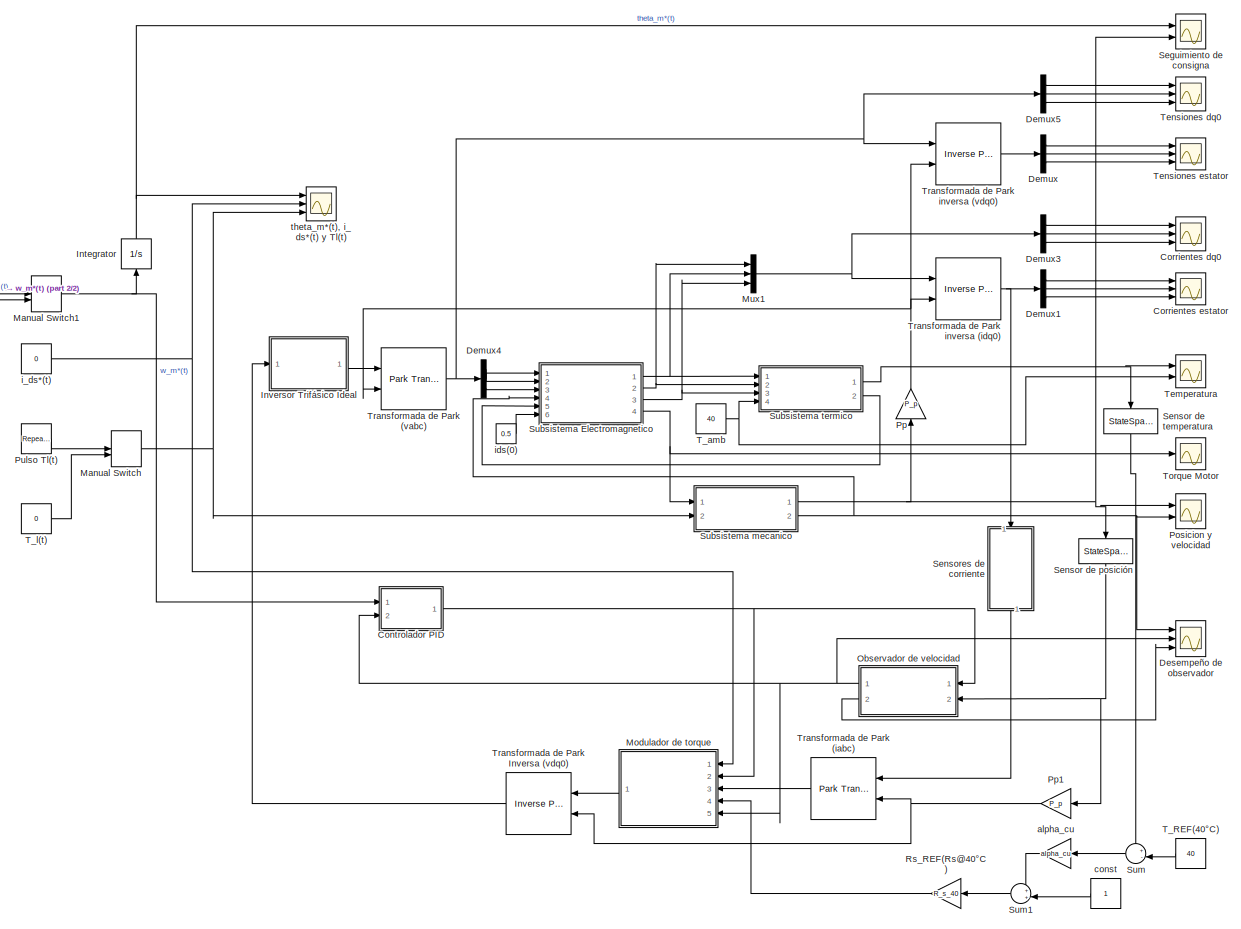
[diagram: root canvas - part 1/2, most of the canvas]
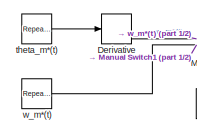
[diagram: root canvas - part 2/2, middle left region]
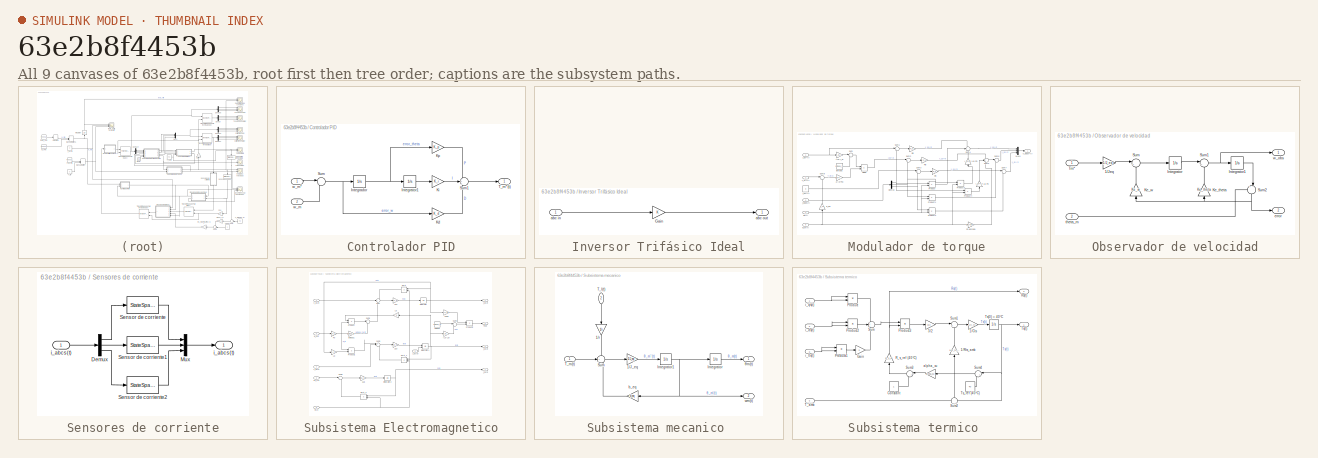
[diagram: thumbnail index - all 9 canvases of the model, root first then tree order]
MODEL slx_63e2b8f4453b
KIND model
CONFIG AbsTol = auto
CONFIG EnableMultiTasking = off
CONFIG FixedStep = auto
CONFIG MaxStep = 1e-5
CONFIG MinStep = auto
CONFIG RelTol = 1e-5
CONFIG SampleTimeConstraint = Unconstrained
CONFIG Solver = VariableStepAuto
CONFIG SolverName = VariableStepAuto
CONFIG StartTime = 0.0
CONFIG StopTime = 25
BLOCK [Scope]  theta_m*(t), i_ds*(t) y Tl(t)
  Floating = off
  NumInputPorts = 3
  Ports = [3]
  ScopeSpecificationString = Simulink.scopes.TimeScopeBlockCfg('CurrentConfiguration', extmgr.ConfigurationSet(extmgr.Configuration('Core','General UI',true,'FigureColor',[1 1 1]),extmgr.Configuration('Core','Source UI',true),extmgr.Configuration('Sources','WiredSimulink',true,'DataLoggingVariableName','ScopeData1'),extmgr.Configuration('Visuals','Time Domain',true,'SerializedDisplays',{struct('MinYLimReal','-253.91627','MaxY...<+1700ch>
BLOCK [SubSystem] Controlador PID
  Ports = [2, 1]
  RequestExecContextInheritance = off
BLOCK [Integrator] Controlador PID/Integrador
  Ports = [1, 1]
BLOCK [Integrator] Controlador PID/Integrator1
  Ports = [1, 1]
BLOCK [Gain] Controlador PID/Kd
  Gain = K_d
  OutDataTypeStr = Inherit: Inherit via internal rule
  ParamDataTypeStr = Inherit: Inherit via internal rule
  SaturateOnIntegerOverflow = off
BLOCK [Gain] Controlador PID/Ki
  Gain = K_i
  OutDataTypeStr = Inherit: Inherit via internal rule
  ParamDataTypeStr = Inherit: Inherit via internal rule
  SaturateOnIntegerOverflow = off
BLOCK [Gain] Controlador PID/Kp
  Gain = K_p
  OutDataTypeStr = Inherit: Inherit via internal rule
  ParamDataTypeStr = Inherit: Inherit via internal rule
  SaturateOnIntegerOverflow = off
BLOCK [Sum] Controlador PID/Sum
  IconShape = round
  InputSameDT = off
  Inputs = |+-
  OutDataTypeStr = Inherit: Inherit via internal rule
  Ports = [2, 1]
  SaturateOnIntegerOverflow = off
BLOCK [Sum] Controlador PID/Sum1
  IconShape = round
  InputSameDT = off
  Inputs = +++
  OutDataTypeStr = Inherit: Inherit via internal rule
  Ports = [3, 1]
  SaturateOnIntegerOverflow = off
BLOCK [Outport] Controlador PID/T_m*'(t)
  IconDisplay = Port number
BLOCK [Inport] Controlador PID/w_m
  IconDisplay = Port number
  Port = 2
BLOCK [Inport] Controlador PID/w_m*
  IconDisplay = Port number
BLOCK [Scope] Corrientes dq0
  Floating = off
  NumInputPorts = 3
  Ports = [3]
  ScopeSpecificationString = Simulink.scopes.TimeScopeBlockCfg('CurrentConfiguration', extmgr.ConfigurationSet(extmgr.Configuration('Core','General UI',true,'FigureColor',[1 1 1]),extmgr.Configuration('Core','Source UI',true),extmgr.Configuration('Sources','WiredSimulink',true,'DataLoggingVariableName','ScopeData3'),extmgr.Configuration('Visuals','Time Domain',true,'SerializedDisplays',{struct('MinYLimReal','-0.74221','MaxYLi...<+1623ch>
BLOCK [Scope] Corrientes estator
  Floating = off
  NumInputPorts = 3
  Ports = [3]
  ScopeSpecificationString = Simulink.scopes.TimeScopeBlockCfg('CurrentConfiguration', extmgr.ConfigurationSet(extmgr.Configuration('Core','General UI',true,'FigureColor',[1 1 1]),extmgr.Configuration('Core','Source UI',true),extmgr.Configuration('Sources','WiredSimulink',true,'DataLoggingVariableName','ScopeData2'),extmgr.Configuration('Visuals','Time Domain',true,'SerializedDisplays',{struct('MinYLimReal','-0.88436','MaxYLi...<+1624ch>
BLOCK [Demux] Demux
  DisplayOption = bar
  Outputs = 3
  Ports = [1, 3]
BLOCK [Demux] Demux1
  DisplayOption = bar
  Outputs = 3
  Ports = [1, 3]
BLOCK [Demux] Demux3
  DisplayOption = bar
  Outputs = 3
  Ports = [1, 3]
BLOCK [Demux] Demux4
  DisplayOption = bar
  Outputs = 3
  Ports = [1, 3]
BLOCK [Demux] Demux5
  DisplayOption = bar
  Outputs = 3
  Ports = [1, 3]
BLOCK [Derivative] Derivative
BLOCK [Scope] Desempeño de observador
  Floating = off
  NumInputPorts = 3
  Ports = [3]
  ScopeSpecificationString = Simulink.scopes.TimeScopeBlockCfg('CurrentConfiguration', extmgr.ConfigurationSet(extmgr.Configuration('Core','General UI',true,'FigureColor',[1 1 1]),extmgr.Configuration('Core','Source UI',true),extmgr.Configuration('Sources','WiredSimulink',true,'DataLoggingVariableName','ScopeData8'),extmgr.Configuration('Visuals','Time Domain',true,'SerializedDisplays',{struct('MinYLimReal','-0.28051','MaxYLi...<+1654ch>
BLOCK [Integrator] Integrator
  Ports = [1, 1]
BLOCK [SubSystem] Inversor Trifásico Ideal
  Ports = [1, 1]
  RequestExecContextInheritance = off
BLOCK [Gain] Inversor Trifásico Ideal/Gain
  OutDataTypeStr = Inherit: Inherit via internal rule
  ParamDataTypeStr = Inherit: Inherit via internal rule
  SaturateOnIntegerOverflow = off
BLOCK [Inport] Inversor Trifásico Ideal/abc in
  IconDisplay = Port number
BLOCK [Outport] Inversor Trifásico Ideal/abc out
  IconDisplay = Port number
BLOCK [ManualSwitch] Manual Switch
BLOCK [ManualSwitch] Manual Switch1
  CurrentSetting = 0
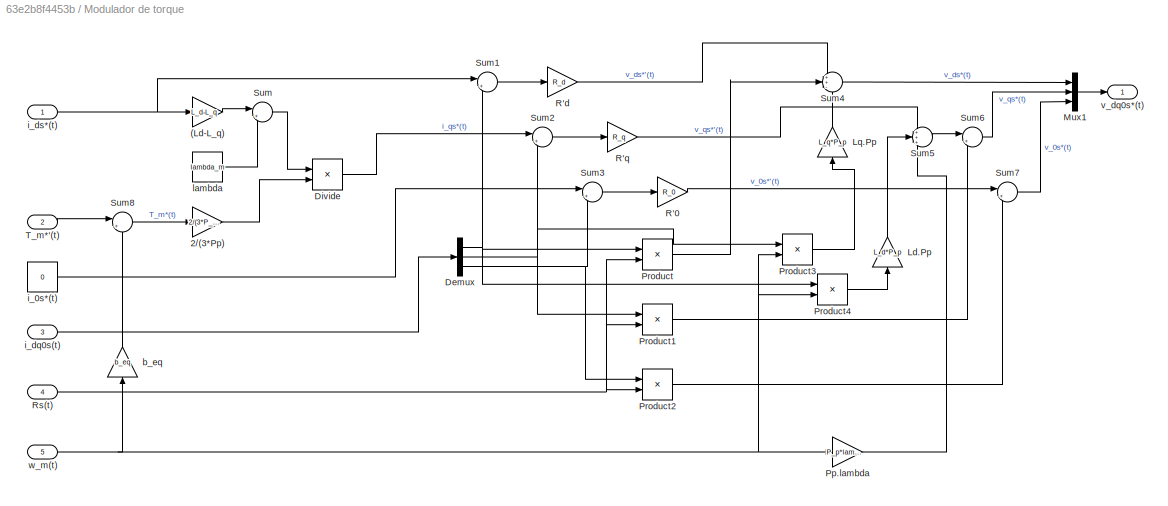
BLOCK [SubSystem] Modulador de torque
  Ports = [5, 1]
  RequestExecContextInheritance = off
BLOCK [Gain] Modulador de torque/(Ld-L_q)
  Gain = L_d-L_q
  OutDataTypeStr = Inherit: Inherit via internal rule
  ParamDataTypeStr = Inherit: Inherit via internal rule
  SaturateOnIntegerOverflow = off
BLOCK [Gain] Modulador de torque/2//(3*Pp)
  Gain = 2/(3*P_p)
  OutDataTypeStr = Inherit: Inherit via internal rule
  ParamDataTypeStr = Inherit: Inherit via internal rule
  SaturateOnIntegerOverflow = off
BLOCK [Demux] Modulador de torque/Demux
  DisplayOption = bar
  Outputs = 3
  Ports = [1, 3]
BLOCK [Product] Modulador de torque/Divide
  InputSameDT = off
  Inputs = /*
  OutDataTypeStr = Inherit: Inherit via internal rule
  Ports = [2, 1]
  RndMeth = Floor
  SaturateOnIntegerOverflow = off
BLOCK [Gain] Modulador de torque/Ld.Pp
  Gain = L_d*P_p
  OutDataTypeStr = Inherit: Inherit via internal rule
  ParamDataTypeStr = Inherit: Inherit via internal rule
  SaturateOnIntegerOverflow = off
BLOCK [Gain] Modulador de torque/Lq.Pp
  Gain = L_q*P_p
  OutDataTypeStr = Inherit: Inherit via internal rule
  ParamDataTypeStr = Inherit: Inherit via internal rule
  SaturateOnIntegerOverflow = off
BLOCK [Mux] Modulador de torque/Mux1
  DisplayOption = bar
  Inputs = 3
  Ports = [3, 1]
BLOCK [Gain] Modulador de torque/Pp.lambda
  Gain = P_p*lambda_m
  OutDataTypeStr = Inherit: Inherit via internal rule
  ParamDataTypeStr = Inherit: Inherit via internal rule
  SaturateOnIntegerOverflow = off
BLOCK [Product] Modulador de torque/Product
  InputSameDT = off
  OutDataTypeStr = Inherit: Inherit via internal rule
  Ports = [2, 1]
  RndMeth = Floor
  SaturateOnIntegerOverflow = off
BLOCK [Product] Modulador de torque/Product1
  InputSameDT = off
  OutDataTypeStr = Inherit: Inherit via internal rule
  Ports = [2, 1]
  RndMeth = Floor
  SaturateOnIntegerOverflow = off
BLOCK [Product] Modulador de torque/Product2
  InputSameDT = off
  OutDataTypeStr = Inherit: Inherit via internal rule
  Ports = [2, 1]
  RndMeth = Floor
  SaturateOnIntegerOverflow = off
BLOCK [Product] Modulador de torque/Product3
  InputSameDT = off
  OutDataTypeStr = Inherit: Inherit via internal rule
  Ports = [2, 1]
  RndMeth = Floor
  SaturateOnIntegerOverflow = off
BLOCK [Product] Modulador de torque/Product4
  InputSameDT = off
  OutDataTypeStr = Inherit: Inherit via internal rule
  Ports = [2, 1]
  RndMeth = Floor
  SaturateOnIntegerOverflow = off
BLOCK [Gain] Modulador de torque/R'0
  Gain = R_0
  OutDataTypeStr = Inherit: Inherit via internal rule
  ParamDataTypeStr = Inherit: Inherit via internal rule
  SaturateOnIntegerOverflow = off
BLOCK [Gain] Modulador de torque/R'd
  Gain = R_d
  OutDataTypeStr = Inherit: Inherit via internal rule
  ParamDataTypeStr = Inherit: Inherit via internal rule
  SaturateOnIntegerOverflow = off
BLOCK [Gain] Modulador de torque/R'q
  Gain = R_q
  OutDataTypeStr = Inherit: Inherit via internal rule
  ParamDataTypeStr = Inherit: Inherit via internal rule
  SaturateOnIntegerOverflow = off
BLOCK [Inport] Modulador de torque/Rs(t)
  IconDisplay = Port number
  Port = 4
BLOCK [Sum] Modulador de torque/Sum
  IconShape = round
  InputSameDT = off
  Inputs = |++
  OutDataTypeStr = Inherit: Inherit via internal rule
  Ports = [2, 1]
  SaturateOnIntegerOverflow = off
BLOCK [Sum] Modulador de torque/Sum1
  IconShape = round
  InputSameDT = off
  Inputs = |+-
  OutDataTypeStr = Inherit: Inherit via internal rule
  Ports = [2, 1]
  SaturateOnIntegerOverflow = off
BLOCK [Sum] Modulador de torque/Sum2
  IconShape = round
  InputSameDT = off
  Inputs = |+-
  OutDataTypeStr = Inherit: Inherit via internal rule
  Ports = [2, 1]
  SaturateOnIntegerOverflow = off
BLOCK [Sum] Modulador de torque/Sum3
  IconShape = round
  InputSameDT = off
  Inputs = |+-
  OutDataTypeStr = Inherit: Inherit via internal rule
  Ports = [2, 1]
  SaturateOnIntegerOverflow = off
BLOCK [Sum] Modulador de torque/Sum4
  IconShape = round
  InputSameDT = off
  Inputs = ++-
  OutDataTypeStr = Inherit: Inherit via internal rule
  Ports = [3, 1]
  SaturateOnIntegerOverflow = off
BLOCK [Sum] Modulador de torque/Sum5
  IconShape = round
  InputSameDT = off
  Inputs = +++
  OutDataTypeStr = Inherit: Inherit via internal rule
  Ports = [3, 1]
  SaturateOnIntegerOverflow = off
BLOCK [Sum] Modulador de torque/Sum6
  IconShape = round
  InputSameDT = off
  Inputs = |++
  OutDataTypeStr = Inherit: Inherit via internal rule
  Ports = [2, 1]
  SaturateOnIntegerOverflow = off
BLOCK [Sum] Modulador de torque/Sum7
  IconShape = round
  InputSameDT = off
  Inputs = |++
  OutDataTypeStr = Inherit: Inherit via internal rule
  Ports = [2, 1]
  SaturateOnIntegerOverflow = off
BLOCK [Sum] Modulador de torque/Sum8
  IconShape = round
  InputSameDT = off
  Inputs = |++
  OutDataTypeStr = Inherit: Inherit via internal rule
  Ports = [2, 1]
  SaturateOnIntegerOverflow = off
BLOCK [Inport] Modulador de torque/T_m*'(t)
  IconDisplay = Port number
  Port = 2
BLOCK [Gain] Modulador de torque/b_eq
  Gain = b_eq
  OutDataTypeStr = Inherit: Inherit via internal rule
  ParamDataTypeStr = Inherit: Inherit via internal rule
  SaturateOnIntegerOverflow = off
BLOCK [Constant] Modulador de torque/i_0s*(t)
  Value = 0
BLOCK [Inport] Modulador de torque/i_dq0s(t)
  IconDisplay = Port number
  Port = 3
BLOCK [Inport] Modulador de torque/i_ds*(t)
  IconDisplay = Port number
BLOCK [Constant] Modulador de torque/lambda
  Value = lambda_m
BLOCK [Outport] Modulador de torque/v_dq0s*(t)
  IconDisplay = Port number
BLOCK [Inport] Modulador de torque/w_m(t)
  IconDisplay = Port number
  Port = 5
BLOCK [Mux] Mux1
  DisplayOption = bar
  Inputs = 3
  Ports = [3, 1]
BLOCK [SubSystem] Observador de velocidad
  Ports = [2, 2]
  RequestExecContextInheritance = off
BLOCK [Gain] Observador de velocidad/1//Jeq
  Gain = 1/J_eq
  OutDataTypeStr = Inherit: Inherit via internal rule
  ParamDataTypeStr = Inherit: Inherit via internal rule
  SaturateOnIntegerOverflow = off
BLOCK [Integrator] Observador de velocidad/Integrator
  Ports = [1, 1]
BLOCK [Integrator] Observador de velocidad/Integrator1
  Ports = [1, 1]
BLOCK [Gain] Observador de velocidad/Ke_theta
  Gain = Ke_theta
  OutDataTypeStr = Inherit: Inherit via internal rule
  ParamDataTypeStr = Inherit: Inherit via internal rule
  SaturateOnIntegerOverflow = off
BLOCK [Gain] Observador de velocidad/Ke_w
  Gain = Ke_w
  OutDataTypeStr = Inherit: Inherit via internal rule
  ParamDataTypeStr = Inherit: Inherit via internal rule
  SaturateOnIntegerOverflow = off
BLOCK [Sum] Observador de velocidad/Sum
  IconShape = round
  InputSameDT = off
  Inputs = |++
  OutDataTypeStr = Inherit: Inherit via internal rule
  Ports = [2, 1]
  SaturateOnIntegerOverflow = off
BLOCK [Sum] Observador de velocidad/Sum1
  IconShape = round
  InputSameDT = off
  Inputs = |++
  OutDataTypeStr = Inherit: Inherit via internal rule
  Ports = [2, 1]
  SaturateOnIntegerOverflow = off
BLOCK [Sum] Observador de velocidad/Sum2
  IconShape = round
  InputSameDT = off
  Inputs = +-|
  OutDataTypeStr = Inherit: Inherit via internal rule
  Ports = [2, 1]
  SaturateOnIntegerOverflow = off
BLOCK [Inport] Observador de velocidad/Tm*
  IconDisplay = Port number
BLOCK [Outport] Observador de velocidad/error
  IconDisplay = Port number
  Port = 2
BLOCK [Inport] Observador de velocidad/theta_m
  IconDisplay = Port number
  Port = 2
BLOCK [Outport] Observador de velocidad/w_obs
  IconDisplay = Port number
BLOCK [Scope] Posicion y velocidad
  Floating = off
  NumInputPorts = 2
  Ports = [2]
  ScopeSpecificationString = Simulink.scopes.TimeScopeBlockCfg('CurrentConfiguration', extmgr.ConfigurationSet(extmgr.Configuration('Core','General UI',true,'FigureColor',[1 1 1]),extmgr.Configuration('Core','Source UI',true),extmgr.Configuration('Sources','WiredSimulink',true,'DataLoggingVariableName','ScopeData4'),extmgr.Configuration('Visuals','Time Domain',true,'SerializedDisplays',{struct('MinYLimReal','-137.56874','MaxY...<+1624ch>
BLOCK [Gain] Pp
  Gain = P_p
  OutDataTypeStr = Inherit: Inherit via internal rule
  ParamDataTypeStr = Inherit: Inherit via internal rule
  SaturateOnIntegerOverflow = off
BLOCK [Gain] Pp1
  Gain = P_p
  OutDataTypeStr = Inherit: Inherit via internal rule
  ParamDataTypeStr = Inherit: Inherit via internal rule
  SaturateOnIntegerOverflow = off
BLOCK [Reference] Pulso Tl(t)  REF=simulink/Sources/Repeating
Sequence
  Ports = [0, 1]
  SourceBlock = simulink/Sources/Repeating\nSequence
  SourceProductBaseCode = SL
  SourceProductName = Simulink
  SourceType = Repeating table
BLOCK [Gain] Rs_REF(Rs@40°C)
  Gain = R_s_40
  OutDataTypeStr = Inherit: Inherit via internal rule
  ParamDataTypeStr = Inherit: Inherit via internal rule
  SaturateOnIntegerOverflow = off
BLOCK [Scope] Seguimiento de consigna
  Floating = off
  NumInputPorts = 2
  Ports = [2]
  ScopeSpecificationString = Simulink.scopes.TimeScopeBlockCfg('CurrentConfiguration', extmgr.ConfigurationSet(extmgr.Configuration('Core','General UI',true,'FigureColor',[1 1 1]),extmgr.Configuration('Core','Source UI',true),extmgr.Configuration('Sources','WiredSimulink',true,'DataLoggingVariableName','ScopeData1'),extmgr.Configuration('Visuals','Time Domain',true,'SerializedDisplays',{struct('MinYLimReal','-0.00552','MaxYLi...<+1608ch>
BLOCK [StateSpace] Sensor de posición
  A = A_sensor_pos
  B = B_sensor_pos
  C = C_sensor_pos
  ContinuousStateAttributes = "position"
  D = D_sensor_pos
  InitialCondition = 0
  Ports = [1, 1]
BLOCK [StateSpace] Sensor de temperatura
  A = A_sensor_temp
  B = B_sensor_temp
  C = C_sensor_temp
  ContinuousStateAttributes = "temperature"
  D = D_sensor_temp
  InitialCondition = 0
  Ports = [1, 1]
BLOCK [SubSystem] Sensores de corriente
  Ports = [1, 1]
  RequestExecContextInheritance = off
BLOCK [Demux] Sensores de corriente/Demux
  DisplayOption = bar
  Outputs = 3
  Ports = [1, 3]
BLOCK [Mux] Sensores de corriente/Mux
  DisplayOption = bar
  Inputs = 3
  Ports = [3, 1]
BLOCK [StateSpace] Sensores de corriente/Sensor de corriente
  A = A_sensor_curr
  B = B_sensor_curr
  C = C_sensor_curr
  ContinuousStateAttributes = "current"
  D = D_sensor_curr
  InitialCondition = 0
  Ports = [1, 1]
BLOCK [StateSpace] Sensores de corriente/Sensor de corriente1
  A = A_sensor_curr
  B = B_sensor_curr
  C = C_sensor_curr
  ContinuousStateAttributes = "current"
  D = D_sensor_curr
  InitialCondition = 0
  Ports = [1, 1]
BLOCK [StateSpace] Sensores de corriente/Sensor de corriente2
  A = A_sensor_curr
  B = B_sensor_curr
  C = C_sensor_curr
  ContinuousStateAttributes = "current"
  D = D_sensor_curr
  InitialCondition = 0
  Ports = [1, 1]
BLOCK [Inport] Sensores de corriente/i_abcs(t)
  IconDisplay = Port number
BLOCK [Outport] Sensores de corriente/i_abcs(t) 
  IconDisplay = Port number
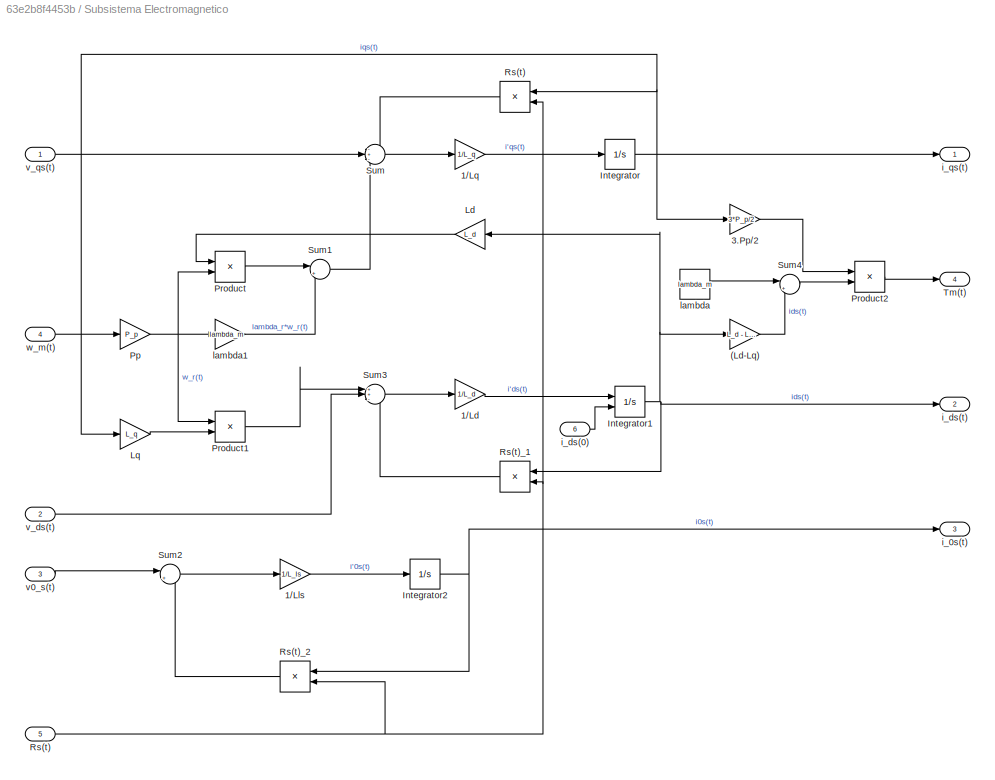
BLOCK [SubSystem] Subsistema Electromagnetico
  Ports = [6, 4]
  RequestExecContextInheritance = off
BLOCK [Gain] Subsistema Electromagnetico/(Ld-Lq)
  Gain = L_d - L_q
  OutDataTypeStr = Inherit: Inherit via internal rule
  ParamDataTypeStr = Inherit: Inherit via internal rule
  SaturateOnIntegerOverflow = off
BLOCK [Gain] Subsistema Electromagnetico/1//Ld
  Gain = 1/L_d
  OutDataTypeStr = Inherit: Inherit via internal rule
  ParamDataTypeStr = Inherit: Inherit via internal rule
  SaturateOnIntegerOverflow = off
BLOCK [Gain] Subsistema Electromagnetico/1//Lls
  Gain = 1/L_ls
  OutDataTypeStr = Inherit: Inherit via internal rule
  ParamDataTypeStr = Inherit: Inherit via internal rule
  SaturateOnIntegerOverflow = off
BLOCK [Gain] Subsistema Electromagnetico/1//Lq
  Gain = 1/L_q
  OutDataTypeStr = Inherit: Inherit via internal rule
  ParamDataTypeStr = Inherit: Inherit via internal rule
  SaturateOnIntegerOverflow = off
BLOCK [Gain] Subsistema Electromagnetico/3.Pp//2
  Gain = 3*P_p/2
  OutDataTypeStr = Inherit: Inherit via internal rule
  ParamDataTypeStr = Inherit: Inherit via internal rule
  SaturateOnIntegerOverflow = off
BLOCK [Integrator] Subsistema Electromagnetico/Integrator
  Ports = [1, 1]
BLOCK [Integrator] Subsistema Electromagnetico/Integrator1
  InitialConditionSource = external
  Ports = [2, 1]
BLOCK [Integrator] Subsistema Electromagnetico/Integrator2
  Ports = [1, 1]
BLOCK [Gain] Subsistema Electromagnetico/Ld
  Gain = L_d
  OutDataTypeStr = Inherit: Inherit via internal rule
  ParamDataTypeStr = Inherit: Inherit via internal rule
  SaturateOnIntegerOverflow = off
BLOCK [Gain] Subsistema Electromagnetico/Lq
  Gain = L_q
  OutDataTypeStr = Inherit: Inherit via internal rule
  ParamDataTypeStr = Inherit: Inherit via internal rule
  SaturateOnIntegerOverflow = off
BLOCK [Gain] Subsistema Electromagnetico/Pp
  Gain = P_p
  OutDataTypeStr = Inherit: Inherit via internal rule
  ParamDataTypeStr = Inherit: Inherit via internal rule
  SaturateOnIntegerOverflow = off
BLOCK [Product] Subsistema Electromagnetico/Product
  InputSameDT = off
  OutDataTypeStr = Inherit: Inherit via internal rule
  Ports = [2, 1]
  RndMeth = Floor
  SaturateOnIntegerOverflow = off
BLOCK [Product] Subsistema Electromagnetico/Product1
  InputSameDT = off
  OutDataTypeStr = Inherit: Inherit via internal rule
  Ports = [2, 1]
  RndMeth = Floor
  SaturateOnIntegerOverflow = off
BLOCK [Product] Subsistema Electromagnetico/Product2
  InputSameDT = off
  OutDataTypeStr = Inherit: Inherit via internal rule
  Ports = [2, 1]
  RndMeth = Floor
  SaturateOnIntegerOverflow = off
BLOCK [Product] Subsistema Electromagnetico/Rs(t)
  InputSameDT = off
  OutDataTypeStr = Inherit: Inherit via internal rule
  Ports = [2, 1]
  RndMeth = Floor
  SaturateOnIntegerOverflow = off
BLOCK [Inport] Subsistema Electromagnetico/Rs(t) 
  IconDisplay = Port number
  Port = 5
BLOCK [Product] Subsistema Electromagnetico/Rs(t)_1
  InputSameDT = off
  OutDataTypeStr = Inherit: Inherit via internal rule
  Ports = [2, 1]
  RndMeth = Floor
  SaturateOnIntegerOverflow = off
BLOCK [Product] Subsistema Electromagnetico/Rs(t)_2
  InputSameDT = off
  OutDataTypeStr = Inherit: Inherit via internal rule
  Ports = [2, 1]
  RndMeth = Floor
  SaturateOnIntegerOverflow = off
BLOCK [Sum] Subsistema Electromagnetico/Sum
  IconShape = round
  InputSameDT = off
  Inputs = -+-
  OutDataTypeStr = Inherit: Inherit via internal rule
  Ports = [3, 1]
  SaturateOnIntegerOverflow = off
BLOCK [Sum] Subsistema Electromagnetico/Sum1
  IconShape = round
  InputSameDT = off
  Inputs = |++
  OutDataTypeStr = Inherit: Inherit via internal rule
  Ports = [2, 1]
  SaturateOnIntegerOverflow = off
BLOCK [Sum] Subsistema Electromagnetico/Sum2
  IconShape = round
  InputSameDT = off
  Inputs = |+-
  OutDataTypeStr = Inherit: Inherit via internal rule
  Ports = [2, 1]
  SaturateOnIntegerOverflow = off
BLOCK [Sum] Subsistema Electromagnetico/Sum3
  IconShape = round
  InputSameDT = off
  Inputs = ++-
  OutDataTypeStr = Inherit: Inherit via internal rule
  Ports = [3, 1]
  SaturateOnIntegerOverflow = off
BLOCK [Sum] Subsistema Electromagnetico/Sum4
  IconShape = round
  InputSameDT = off
  Inputs = |++
  OutDataTypeStr = Inherit: Inherit via internal rule
  Ports = [2, 1]
  SaturateOnIntegerOverflow = off
BLOCK [Outport] Subsistema Electromagnetico/Tm(t)
  IconDisplay = Port number
  Port = 4
BLOCK [Outport] Subsistema Electromagnetico/i_0s(t) 
  IconDisplay = Port number
  Port = 3
BLOCK [Inport] Subsistema Electromagnetico/i_ds(0)
  IconDisplay = Port number
  Port = 6
BLOCK [Outport] Subsistema Electromagnetico/i_ds(t)
  IconDisplay = Port number
  Port = 2
BLOCK [Outport] Subsistema Electromagnetico/i_qs(t) 
  IconDisplay = Port number
BLOCK [Constant] Subsistema Electromagnetico/lambda
  Value = lambda_m
BLOCK [Gain] Subsistema Electromagnetico/lambda1
  Gain = lambda_m
  OutDataTypeStr = Inherit: Inherit via internal rule
  ParamDataTypeStr = Inherit: Inherit via internal rule
  SaturateOnIntegerOverflow = off
BLOCK [Inport] Subsistema Electromagnetico/v0_s(t)
  IconDisplay = Port number
  Port = 3
BLOCK [Inport] Subsistema Electromagnetico/v_ds(t)
  IconDisplay = Port number
  Port = 2
BLOCK [Inport] Subsistema Electromagnetico/v_qs(t)
  IconDisplay = Port number
BLOCK [Inport] Subsistema Electromagnetico/w_m(t)
  IconDisplay = Port number
  Port = 4
BLOCK [SubSystem] Subsistema mecanico 
  Ports = [2, 2]
  RequestExecContextInheritance = off
BLOCK [Gain] Subsistema mecanico /1//J_eq 
  Gain = 1/J_eq
  OutDataTypeStr = Inherit: Inherit via internal rule
  ParamDataTypeStr = Inherit: Inherit via internal rule
  SaturateOnIntegerOverflow = off
BLOCK [Gain] Subsistema mecanico /1//r
  Gain = 1/r
  OutDataTypeStr = Inherit: Inherit via internal rule
  ParamDataTypeStr = Inherit: Inherit via internal rule
  SaturateOnIntegerOverflow = off
BLOCK [Integrator] Subsistema mecanico /Integrator
  Ports = [1, 1]
BLOCK [Integrator] Subsistema mecanico /Integrator1
  Ports = [1, 1]
BLOCK [Sum] Subsistema mecanico /Sum
  IconShape = round
  InputSameDT = off
  Inputs = -+-
  OutDataTypeStr = Inherit: Inherit via internal rule
  Ports = [3, 1]
  SaturateOnIntegerOverflow = off
BLOCK [Inport] Subsistema mecanico /T_l(t) 
  IconDisplay = Port number
  Port = 2
BLOCK [Inport] Subsistema mecanico /T_m(t) 
  IconDisplay = Port number
BLOCK [Gain] Subsistema mecanico /b_eq
  Gain = b_eq
  OutDataTypeStr = Inherit: Inherit via internal rule
  ParamDataTypeStr = Inherit: Inherit via internal rule
  SaturateOnIntegerOverflow = off
BLOCK [Outport] Subsistema mecanico /wm(t)
  IconDisplay = Port number
  Port = 2
BLOCK [Outport] Subsistema mecanico /θm(t)
  IconDisplay = Port number
BLOCK [SubSystem] Subsistema termico 
  Ports = [4, 2]
  RequestExecContextInheritance = off
BLOCK [Gain] Subsistema termico /1//Cts
  Gain = 1/C_ts
  OutDataTypeStr = Inherit: Inherit via internal rule
  ParamDataTypeStr = Inherit: Inherit via internal rule
  SaturateOnIntegerOverflow = off
BLOCK [Gain] Subsistema termico /1//Rts_amb
  Gain = 1/R_ts_amb
  OutDataTypeStr = Inherit: Inherit via internal rule
  ParamDataTypeStr = Inherit: Inherit via internal rule
  SaturateOnIntegerOverflow = off
BLOCK [Gain] Subsistema termico /3//2
  Gain = 3/2
  OutDataTypeStr = Inherit: Inherit via internal rule
  ParamDataTypeStr = Inherit: Inherit via internal rule
  SaturateOnIntegerOverflow = off
BLOCK [Constant] Subsistema termico /Constant
BLOCK [Gain] Subsistema termico /Gain
  Gain = 2
  OutDataTypeStr = Inherit: Inherit via internal rule
  ParamDataTypeStr = Inherit: Inherit via internal rule
  SaturateOnIntegerOverflow = off
BLOCK [Product] Subsistema termico /Product
  InputSameDT = off
  OutDataTypeStr = Inherit: Inherit via internal rule
  Ports = [2, 1]
  RndMeth = Floor
  SaturateOnIntegerOverflow = off
BLOCK [Product] Subsistema termico /Product1
  InputSameDT = off
  OutDataTypeStr = Inherit: Inherit via internal rule
  Ports = [2, 1]
  RndMeth = Floor
  SaturateOnIntegerOverflow = off
BLOCK [Product] Subsistema termico /Product2
  InputSameDT = off
  OutDataTypeStr = Inherit: Inherit via internal rule
  Ports = [2, 1]
  RndMeth = Floor
  SaturateOnIntegerOverflow = off
BLOCK [Product] Subsistema termico /Product3
  InputSameDT = off
  OutDataTypeStr = Inherit: Inherit via internal rule
  Ports = [2, 1]
  RndMeth = Floor
  SaturateOnIntegerOverflow = off
BLOCK [Gain] Subsistema termico /R_s_ref (40°C)
  Gain = R_s_40
  OutDataTypeStr = Inherit: Inherit via internal rule
  ParamDataTypeStr = Inherit: Inherit via internal rule
  SaturateOnIntegerOverflow = off
BLOCK [Outport] Subsistema termico /Rs(t)
  IconDisplay = Port number
  Port = 2
BLOCK [Sum] Subsistema termico /Sum
  IconShape = round
  InputSameDT = off
  Inputs = +++
  OutDataTypeStr = Inherit: Inherit via internal rule
  Ports = [3, 1]
  SaturateOnIntegerOverflow = off
BLOCK [Sum] Subsistema termico /Sum1
  IconShape = round
  InputSameDT = off
  Inputs = |+-
  OutDataTypeStr = Inherit: Inherit via internal rule
  Ports = [2, 1]
  SaturateOnIntegerOverflow = off
BLOCK [Sum] Subsistema termico /Sum2
  IconShape = round
  InputSameDT = off
  Inputs = -|+
  OutDataTypeStr = Inherit: Inherit via internal rule
  Ports = [2, 1]
  SaturateOnIntegerOverflow = off
BLOCK [Sum] Subsistema termico /Sum3
  IconShape = round
  InputSameDT = off
  Inputs = |++
  OutDataTypeStr = Inherit: Inherit via internal rule
  Ports = [2, 1]
  SaturateOnIntegerOverflow = off
BLOCK [Sum] Subsistema termico /Sum4
  IconShape = round
  InputSameDT = off
  Inputs = |+-
  OutDataTypeStr = Inherit: Inherit via internal rule
  Ports = [2, 1]
  SaturateOnIntegerOverflow = off
BLOCK [Inport] Subsistema termico /T_amb
  IconDisplay = Port number
  Port = 4
BLOCK [Integrator] Subsistema termico /Ts(0) = 40°C
  InitialCondition = 40
  Ports = [1, 1]
BLOCK [Outport] Subsistema termico /Ts(t)
  IconDisplay = Port number
BLOCK [Constant] Subsistema termico /Ts_ref (40°C)
  Value = 40
BLOCK [Gain] Subsistema termico /alpha_cu
  Gain = alpha_cu
  OutDataTypeStr = Inherit: Inherit via internal rule
  ParamDataTypeStr = Inherit: Inherit via internal rule
  SaturateOnIntegerOverflow = off
BLOCK [Inport] Subsistema termico /i_0s(t)
  IconDisplay = Port number
  Port = 3
BLOCK [Inport] Subsistema termico /i_ds(t) 
  IconDisplay = Port number
  Port = 2
BLOCK [Inport] Subsistema termico /i_qs(t) 
  IconDisplay = Port number
BLOCK [Sum] Sum
  IconShape = round
  InputSameDT = off
  Inputs = +-|
  OutDataTypeStr = Inherit: Inherit via internal rule
  Ports = [2, 1]
  SaturateOnIntegerOverflow = off
BLOCK [Sum] Sum1
  IconShape = round
  InputSameDT = off
  Inputs = ++|
  OutDataTypeStr = Inherit: Inherit via internal rule
  Ports = [2, 1]
  SaturateOnIntegerOverflow = off
BLOCK [Constant] T_REF(40°C)
  Value = 40
BLOCK [Constant] T_amb
  Value = 40
BLOCK [Constant] T_l(t)
  Value = 0
BLOCK [Scope] Temperatura
  Floating = off
  NumInputPorts = 2
  Ports = [2]
  ScopeSpecificationString = Simulink.scopes.TimeScopeBlockCfg('CurrentConfiguration', extmgr.ConfigurationSet(extmgr.Configuration('Core','General UI',true,'FigureColor',[1 1 1]),extmgr.Configuration('Core','Source UI',true),extmgr.Configuration('Sources','WiredSimulink',true,'DataLoggingVariableName','ScopeData5'),extmgr.Configuration('Visuals','Time Domain',true,'SerializedDisplays',{struct('MinYLimReal','39.65128','MaxYLi...<+1608ch>
BLOCK [Scope] Tensiones dq0
  Floating = off
  NumInputPorts = 3
  Ports = [3]
  ScopeSpecificationString = Simulink.scopes.TimeScopeBlockCfg('CurrentConfiguration', extmgr.ConfigurationSet(extmgr.Configuration('Core','General UI',true,'FigureColor',[1 1 1]),extmgr.Configuration('Core','Source UI',true),extmgr.Configuration('Sources','WiredSimulink',true,'DataLoggingVariableName','ScopeData7'),extmgr.Configuration('Visuals','Time Domain',true,'SerializedDisplays',{struct('MinYLimReal','-24.59907','MaxYL...<+1630ch>
BLOCK [Scope] Tensiones estator
  Floating = off
  NumInputPorts = 3
  Ports = [3]
  ScopeSpecificationString = Simulink.scopes.TimeScopeBlockCfg('CurrentConfiguration', extmgr.ConfigurationSet(extmgr.Configuration('Core','General UI',true,'FigureColor',[1 1 1]),extmgr.Configuration('Core','Source UI',true),extmgr.Configuration('Sources','WiredSimulink',true,'DataLoggingVariableName','ScopeData6'),extmgr.Configuration('Visuals','Time Domain',true,'SerializedDisplays',{struct('MinYLimReal','-24.87307','MaxYL...<+1626ch>
BLOCK [Scope] Torque Motor
  Floating = off
  NumInputPorts = 1
  Ports = [1]
  ScopeSpecificationString = Simulink.scopes.TimeScopeBlockCfg('CurrentConfiguration', extmgr.ConfigurationSet(extmgr.Configuration('Core','General UI',true,'FigureColor',[1 1 1]),extmgr.Configuration('Core','Source UI',true),extmgr.Configuration('Sources','WiredSimulink',true),extmgr.Configuration('Visuals','Time Domain',true,'SerializedDisplays',{struct('MinYLimReal','-0.06279','MaxYLimReal','0.06276','YLabelReal','','MinYL...<+1520ch>
BLOCK [Reference] Transformada de Park (iabc)  REF=eeTransforms/Park Transform
  Ports = [2, 1]
  SourceBlock = eeTransforms/Park Transform
  SourceProductBaseCode = PS
  SourceProductName = Simscape Electrical
  SourceType = Park Transform
BLOCK [Reference] Transformada de Park (vabc)   REF=eeTransforms/Park Transform
  Ports = [2, 1]
  SourceBlock = eeTransforms/Park Transform
  SourceProductBaseCode = PS
  SourceProductName = Simscape Electrical
  SourceType = Park Transform
BLOCK [Reference] Transformada de Park Inversa (vdq0)  REF=eeTransforms/Inverse
Park Transform
  Ports = [2, 1]
  SourceBlock = eeTransforms/Inverse\nPark Transform
  SourceProductBaseCode = PS
  SourceProductName = Simscape Electrical
  SourceType = Inverse Park Transform
BLOCK [Reference] Transformada de Park inversa (idq0)  REF=eeTransforms/Inverse
Park Transform
  Ports = [2, 1]
  SourceBlock = eeTransforms/Inverse\nPark Transform
  SourceProductBaseCode = PS
  SourceProductName = Simscape Electrical
  SourceType = Inverse Park Transform
BLOCK [Reference] Transformada de Park inversa (vdq0)   REF=eeTransforms/Inverse
Park Transform
  Ports = [2, 1]
  SourceBlock = eeTransforms/Inverse\nPark Transform
  SourceProductBaseCode = PS
  SourceProductName = Simscape Electrical
  SourceType = Inverse Park Transform
BLOCK [Gain] alpha_cu
  Gain = alpha_cu
  OutDataTypeStr = Inherit: Inherit via internal rule
  ParamDataTypeStr = Inherit: Inherit via internal rule
  SaturateOnIntegerOverflow = off
BLOCK [Constant] const
BLOCK [Constant] i_ds*(t)
  Value = 0
BLOCK [Constant] ids(0)
  Value = 0.5
BLOCK [Reference] theta_m*(t)  REF=simulink/Sources/Repeating
Sequence
  Ports = [0, 1]
  SourceBlock = simulink/Sources/Repeating\nSequence
  SourceProductBaseCode = SL
  SourceProductName = Simulink
  SourceType = Repeating table
BLOCK [Reference] w_m*(t)  REF=simulink/Sources/Repeating
Sequence
  Ports = [0, 1]
  SourceBlock = simulink/Sources/Repeating\nSequence
  SourceProductBaseCode = SL
  SourceProductName = Simulink
  SourceType = Repeating table
NET Controlador PID/Integrador:1 -> Controlador PID/Integrator1:1, Controlador PID/Kp:1
LINE Controlador PID/Integrator1:1 -> Controlador PID/Ki:1
LINE Controlador PID/Kd:1 -> Controlador PID/Sum1:3
LINE Controlador PID/Ki:1 -> Controlador PID/Sum1:2
LINE Controlador PID/Kp:1 -> Controlador PID/Sum1:1
LINE Controlador PID/Sum1:1 -> Controlador PID/T_m*'(t):1
NET Controlador PID/Sum:1 -> Controlador PID/Integrador:1, Controlador PID/Kd:1
LINE Controlador PID/w_m*:1 -> Controlador PID/Sum:1
LINE Controlador PID/w_m:1 -> Controlador PID/Sum:2
NET Controlador PID:1 -> Modulador de torque:2, Observador de velocidad:1
LINE Demux1:1 -> Corrientes estator:1
LINE Demux1:2 -> Corrientes estator:2
LINE Demux1:3 -> Corrientes estator:3
LINE Demux3:1 -> Corrientes dq0:1
LINE Demux3:2 -> Corrientes dq0:2
LINE Demux3:3 -> Corrientes dq0:3
LINE Demux4:1 -> Subsistema Electromagnetico:2
LINE Demux4:2 -> Subsistema Electromagnetico:1
LINE Demux4:3 -> Subsistema Electromagnetico:3
LINE Demux5:1 -> Tensiones dq0:1
LINE Demux5:2 -> Tensiones dq0:2
LINE Demux5:3 -> Tensiones dq0:3
LINE Demux:1 -> Tensiones estator:1
LINE Demux:2 -> Tensiones estator:2
LINE Demux:3 -> Tensiones estator:3
LINE Derivative:1 -> Manual Switch1:1
NET Integrator:1 ->  theta_m*(t), i_ds*(t) y Tl(t):1, Seguimiento de consigna:1
LINE Inversor Trifásico Ideal/Gain:1 -> Inversor Trifásico Ideal/abc out:1
LINE Inversor Trifásico Ideal/abc in:1 -> Inversor Trifásico Ideal/Gain:1
LINE Inversor Trifásico Ideal:1 -> Transformada de Park (vabc) :1
NET Manual Switch1:1 -> Controlador PID:1, Integrator:1
NET Manual Switch:1 ->  theta_m*(t), i_ds*(t) y Tl(t):3, Subsistema mecanico :2
LINE Modulador de torque/(Ld-L_q):1 -> Modulador de torque/Sum:1
LINE Modulador de torque/2//(3*Pp):1 -> Modulador de torque/Divide:2
NET Modulador de torque/Demux:1 -> Modulador de torque/Product4:1, Modulador de torque/Product:1, Modulador de torque/Sum1:2
NET Modulador de torque/Demux:2 -> Modulador de torque/Product1:1, Modulador de torque/Product3:1, Modulador de torque/Sum2:2
NET Modulador de torque/Demux:3 -> Modulador de torque/Product2:1, Modulador de torque/Sum3:2
LINE Modulador de torque/Divide:1 -> Modulador de torque/Sum2:1
LINE Modulador de torque/Ld.Pp:1 -> Modulador de torque/Sum5:2
LINE Modulador de torque/Lq.Pp:1 -> Modulador de torque/Sum4:3
LINE Modulador de torque/Mux1:1 -> Modulador de torque/v_dq0s*(t):1
LINE Modulador de torque/Pp.lambda:1 -> Modulador de torque/Sum5:3
LINE Modulador de torque/Product1:1 -> Modulador de torque/Sum6:2
LINE Modulador de torque/Product2:1 -> Modulador de torque/Sum7:2
LINE Modulador de torque/Product3:1 -> Modulador de torque/Lq.Pp:1
LINE Modulador de torque/Product4:1 -> Modulador de torque/Ld.Pp:1
LINE Modulador de torque/Product:1 -> Modulador de torque/Sum4:2
LINE Modulador de torque/R'0:1 -> Modulador de torque/Sum7:1
LINE Modulador de torque/R'd:1 -> Modulador de torque/Sum4:1
LINE Modulador de torque/R'q:1 -> Modulador de torque/Sum5:1
NET Modulador de torque/Rs(t):1 -> Modulador de torque/Product1:2, Modulador de torque/Product2:2, Modulador de torque/Product:2
LINE Modulador de torque/Sum1:1 -> Modulador de torque/R'd:1
LINE Modulador de torque/Sum2:1 -> Modulador de torque/R'q:1
LINE Modulador de torque/Sum3:1 -> Modulador de torque/R'0:1
LINE Modulador de torque/Sum4:1 -> Modulador de torque/Mux1:1
LINE Modulador de torque/Sum5:1 -> Modulador de torque/Sum6:1
LINE Modulador de torque/Sum6:1 -> Modulador de torque/Mux1:2
LINE Modulador de torque/Sum7:1 -> Modulador de torque/Mux1:3
LINE Modulador de torque/Sum8:1 -> Modulador de torque/2//(3*Pp):1
LINE Modulador de torque/Sum:1 -> Modulador de torque/Divide:1
LINE Modulador de torque/T_m*'(t):1 -> Modulador de torque/Sum8:1
LINE Modulador de torque/b_eq:1 -> Modulador de torque/Sum8:2
LINE Modulador de torque/i_0s*(t):1 -> Modulador de torque/Sum3:1
LINE Modulador de torque/i_dq0s(t):1 -> Modulador de torque/Demux:1
NET Modulador de torque/i_ds*(t):1 -> Modulador de torque/(Ld-L_q):1, Modulador de torque/Sum1:1
LINE Modulador de torque/lambda:1 -> Modulador de torque/Sum:2
NET Modulador de torque/w_m(t):1 -> Modulador de torque/Pp.lambda:1, Modulador de torque/Product3:2, Modulador de torque/Product4:2, Modulador de torque/b_eq:1
LINE Modulador de torque:1 -> Transformada de Park Inversa (vdq0):1
NET Mux1:1 -> Demux3:1, Transformada de Park inversa (idq0):1
LINE Observador de velocidad/1//Jeq:1 -> Observador de velocidad/Sum:1
LINE Observador de velocidad/Integrator1:1 -> Observador de velocidad/Sum2:2
LINE Observador de velocidad/Integrator:1 -> Observador de velocidad/Sum1:1
LINE Observador de velocidad/Ke_theta:1 -> Observador de velocidad/Sum1:2
LINE Observador de velocidad/Ke_w:1 -> Observador de velocidad/Sum:2
NET Observador de velocidad/Sum1:1 -> Observador de velocidad/Integrator1:1, Observador de velocidad/w_obs:1
NET Observador de velocidad/Sum2:1 -> Observador de velocidad/Ke_theta:1, Observador de velocidad/Ke_w:1, Observador de velocidad/error:1
LINE Observador de velocidad/Sum:1 -> Observador de velocidad/Integrator:1
LINE Observador de velocidad/Tm*:1 -> Observador de velocidad/1//Jeq:1
LINE Observador de velocidad/theta_m:1 -> Observador de velocidad/Sum2:1
NET Observador de velocidad:1 -> Controlador PID:2, Desempeño de observador:2, Modulador de torque:5
LINE Observador de velocidad:2 -> Desempeño de observador:3
NET Pp1:1 -> Transformada de Park (iabc):2, Transformada de Park Inversa (vdq0):2
NET Pp:1 -> Transformada de Park (vabc) :2, Transformada de Park inversa (idq0):2, Transformada de Park inversa (vdq0) :2
LINE Pulso Tl(t):1 -> Manual Switch:1
LINE Rs_REF(Rs@40°C):1 -> Modulador de torque:4
NET Sensor de posición:1 -> Observador de velocidad:2, Pp1:1
LINE Sensor de temperatura:1 -> Sum:1
LINE Sensores de corriente/Demux:1 -> Sensores de corriente/Sensor de corriente:1
LINE Sensores de corriente/Demux:2 -> Sensores de corriente/Sensor de corriente1:1
LINE Sensores de corriente/Demux:3 -> Sensores de corriente/Sensor de corriente2:1
LINE Sensores de corriente/Mux:1 -> Sensores de corriente/i_abcs(t) :1
LINE Sensores de corriente/Sensor de corriente1:1 -> Sensores de corriente/Mux:2
LINE Sensores de corriente/Sensor de corriente2:1 -> Sensores de corriente/Mux:3
LINE Sensores de corriente/Sensor de corriente:1 -> Sensores de corriente/Mux:1
LINE Sensores de corriente/i_abcs(t):1 -> Sensores de corriente/Demux:1
LINE Sensores de corriente:1 -> Transformada de Park (iabc):1
LINE Subsistema Electromagnetico/(Ld-Lq):1 -> Subsistema Electromagnetico/Sum4:2
LINE Subsistema Electromagnetico/1//Ld:1 -> Subsistema Electromagnetico/Integrator1:1
LINE Subsistema Electromagnetico/1//Lls:1 -> Subsistema Electromagnetico/Integrator2:1
LINE Subsistema Electromagnetico/1//Lq:1 -> Subsistema Electromagnetico/Integrator:1
LINE Subsistema Electromagnetico/3.Pp//2:1 -> Subsistema Electromagnetico/Product2:1
NET Subsistema Electromagnetico/Integrator1:1 -> Subsistema Electromagnetico/(Ld-Lq):1, Subsistema Electromagnetico/Ld:1, Subsistema Electromagnetico/Rs(t)_1:1, Subsistema Electromagnetico/i_ds(t):1
NET Subsistema Electromagnetico/Integrator2:1 -> Subsistema Electromagnetico/Rs(t)_2:1, Subsistema Electromagnetico/i_0s(t) :1
NET Subsistema Electromagnetico/Integrator:1 -> Subsistema Electromagnetico/3.Pp//2:1, Subsistema Electromagnetico/Lq:1, Subsistema Electromagnetico/Rs(t):1, Subsistema Electromagnetico/i_qs(t) :1
LINE Subsistema Electromagnetico/Ld:1 -> Subsistema Electromagnetico/Product:1
LINE Subsistema Electromagnetico/Lq:1 -> Subsistema Electromagnetico/Product1:2
NET Subsistema Electromagnetico/Pp:1 -> Subsistema Electromagnetico/Product1:1, Subsistema Electromagnetico/Product:2, Subsistema Electromagnetico/lambda1:1
LINE Subsistema Electromagnetico/Product1:1 -> Subsistema Electromagnetico/Sum3:1
LINE Subsistema Electromagnetico/Product2:1 -> Subsistema Electromagnetico/Tm(t):1
LINE Subsistema Electromagnetico/Product:1 -> Subsistema Electromagnetico/Sum1:1
NET Subsistema Electromagnetico/Rs(t) :1 -> Subsistema Electromagnetico/Rs(t):2, Subsistema Electromagnetico/Rs(t)_1:2, Subsistema Electromagnetico/Rs(t)_2:2
LINE Subsistema Electromagnetico/Rs(t):1 -> Subsistema Electromagnetico/Sum:1
LINE Subsistema Electromagnetico/Rs(t)_1:1 -> Subsistema Electromagnetico/Sum3:3
LINE Subsistema Electromagnetico/Rs(t)_2:1 -> Subsistema Electromagnetico/Sum2:2
LINE Subsistema Electromagnetico/Sum1:1 -> Subsistema Electromagnetico/Sum:3
LINE Subsistema Electromagnetico/Sum2:1 -> Subsistema Electromagnetico/1//Lls:1
LINE Subsistema Electromagnetico/Sum3:1 -> Subsistema Electromagnetico/1//Ld:1
LINE Subsistema Electromagnetico/Sum4:1 -> Subsistema Electromagnetico/Product2:2
LINE Subsistema Electromagnetico/Sum:1 -> Subsistema Electromagnetico/1//Lq:1
LINE Subsistema Electromagnetico/i_ds(0):1 -> Subsistema Electromagnetico/Integrator1:2
LINE Subsistema Electromagnetico/lambda1:1 -> Subsistema Electromagnetico/Sum1:2
LINE Subsistema Electromagnetico/lambda:1 -> Subsistema Electromagnetico/Sum4:1
LINE Subsistema Electromagnetico/v0_s(t):1 -> Subsistema Electromagnetico/Sum2:1
LINE Subsistema Electromagnetico/v_ds(t):1 -> Subsistema Electromagnetico/Sum3:2
LINE Subsistema Electromagnetico/v_qs(t):1 -> Subsistema Electromagnetico/Sum:2
LINE Subsistema Electromagnetico/w_m(t):1 -> Subsistema Electromagnetico/Pp:1
NET Subsistema Electromagnetico:1 -> Mux1:2, Subsistema termico :1
NET Subsistema Electromagnetico:2 -> Mux1:1, Subsistema termico :2
NET Subsistema Electromagnetico:3 -> Mux1:3, Subsistema termico :3
NET Subsistema Electromagnetico:4 -> Subsistema mecanico :1, Torque Motor:1
LINE Subsistema mecanico /1//J_eq :1 -> Subsistema mecanico /Integrator1:1
LINE Subsistema mecanico /1//r:1 -> Subsistema mecanico /Sum:1
NET Subsistema mecanico /Integrator1:1 -> Subsistema mecanico /Integrator:1, Subsistema mecanico /b_eq:1, Subsistema mecanico /wm(t):1
LINE Subsistema mecanico /Integrator:1 -> Subsistema mecanico /θm(t):1
LINE Subsistema mecanico /Sum:1 -> Subsistema mecanico /1//J_eq :1
LINE Subsistema mecanico /T_l(t) :1 -> Subsistema mecanico /1//r:1
LINE Subsistema mecanico /T_m(t) :1 -> Subsistema mecanico /Sum:2
LINE Subsistema mecanico /b_eq:1 -> Subsistema mecanico /Sum:3
NET Subsistema mecanico :1 -> Posicion y velocidad:1, Pp:1, Seguimiento de consigna:2, Sensor de posición:1
NET Subsistema mecanico :2 -> Desempeño de observador:1, Posicion y velocidad:2, Subsistema Electromagnetico:4
LINE Subsistema termico /1//Cts:1 -> Subsistema termico /Ts(0) = 40°C:1
LINE Subsistema termico /1//Rts_amb:1 -> Subsistema termico /Sum1:2
LINE Subsistema termico /3//2:1 -> Subsistema termico /Sum1:1
LINE Subsistema termico /Constant:1 -> Subsistema termico /Sum3:2
LINE Subsistema termico /Gain:1 -> Subsistema termico /Sum:3
LINE Subsistema termico /Product1:1 -> Subsistema termico /Gain:1
LINE Subsistema termico /Product2:1 -> Subsistema termico /Sum:2
LINE Subsistema termico /Product3:1 -> Subsistema termico /3//2:1
LINE Subsistema termico /Product:1 -> Subsistema termico /Sum:1
NET Subsistema termico /R_s_ref (40°C):1 -> Subsistema termico /Product3:2, Subsistema termico /Rs(t):1
LINE Subsistema termico /Sum1:1 -> Subsistema termico /1//Cts:1
LINE Subsistema termico /Sum2:1 -> Subsistema termico /1//Rts_amb:1
LINE Subsistema termico /Sum3:1 -> Subsistema termico /R_s_ref (40°C):1
LINE Subsistema termico /Sum4:1 -> Subsistema termico /alpha_cu:1
LINE Subsistema termico /Sum:1 -> Subsistema termico /Product3:1
LINE Subsistema termico /T_amb:1 -> Subsistema termico /Sum2:1
NET Subsistema termico /Ts(0) = 40°C:1 -> Subsistema termico /Sum2:2, Subsistema termico /Sum4:1, Subsistema termico /Ts(t):1
LINE Subsistema termico /Ts_ref (40°C):1 -> Subsistema termico /Sum4:2
LINE Subsistema termico /alpha_cu:1 -> Subsistema termico /Sum3:1
NET Subsistema termico /i_0s(t):1 -> Subsistema termico /Product1:1, Subsistema termico /Product1:2
NET Subsistema termico /i_ds(t) :1 -> Subsistema termico /Product2:1, Subsistema termico /Product2:2
NET Subsistema termico /i_qs(t) :1 -> Subsistema termico /Product:1, Subsistema termico /Product:2
NET Subsistema termico :1 -> Sensor de temperatura:1, Temperatura:1
LINE Subsistema termico :2 -> Subsistema Electromagnetico:5
LINE Sum1:1 -> Rs_REF(Rs@40°C):1
LINE Sum:1 -> alpha_cu:1
LINE T_REF(40°C):1 -> Sum:2
NET T_amb:1 -> Subsistema termico :4, Temperatura:2
LINE T_l(t):1 -> Manual Switch:2
LINE Transformada de Park (iabc):1 -> Modulador de torque:3
NET Transformada de Park (vabc) :1 -> Demux4:1, Demux5:1, Transformada de Park inversa (vdq0) :1
LINE Transformada de Park Inversa (vdq0):1 -> Inversor Trifásico Ideal:1
NET Transformada de Park inversa (idq0):1 -> Demux1:1, Sensores de corriente:1
LINE Transformada de Park inversa (vdq0) :1 -> Demux:1
LINE alpha_cu:1 -> Sum1:1
LINE const:1 -> Sum1:2
NET i_ds*(t):1 ->  theta_m*(t), i_ds*(t) y Tl(t):2, Modulador de torque:1
LINE ids(0):1 -> Subsistema Electromagnetico:6
LINE theta_m*(t):1 -> Derivative:1
LINE w_m*(t):1 -> Manual Switch1:2
note: NET lines group one-source signal fan-out (src -> all destinations, sorted); 1:1 wires keep LINE
